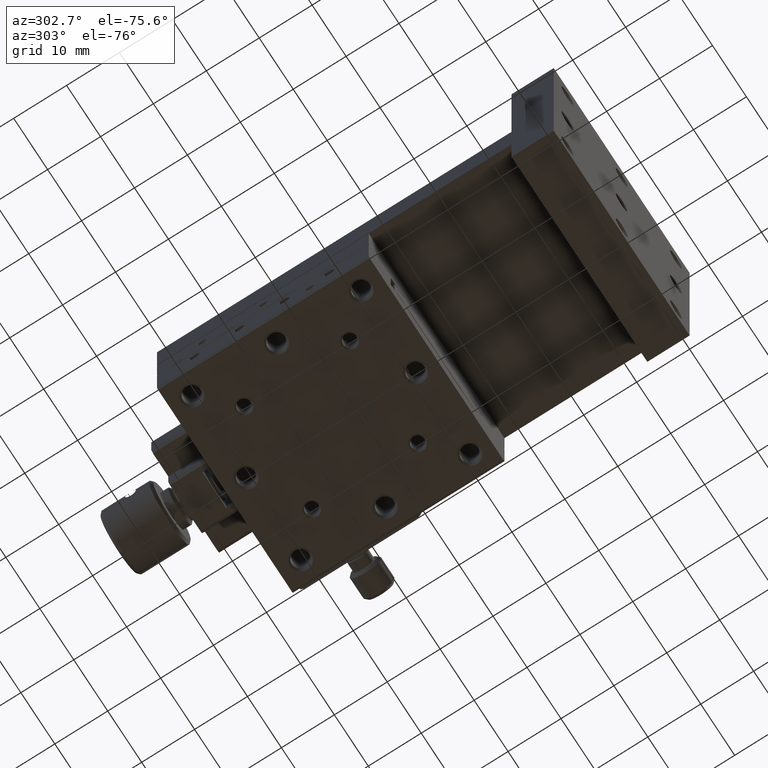
[diagram: clean part render]
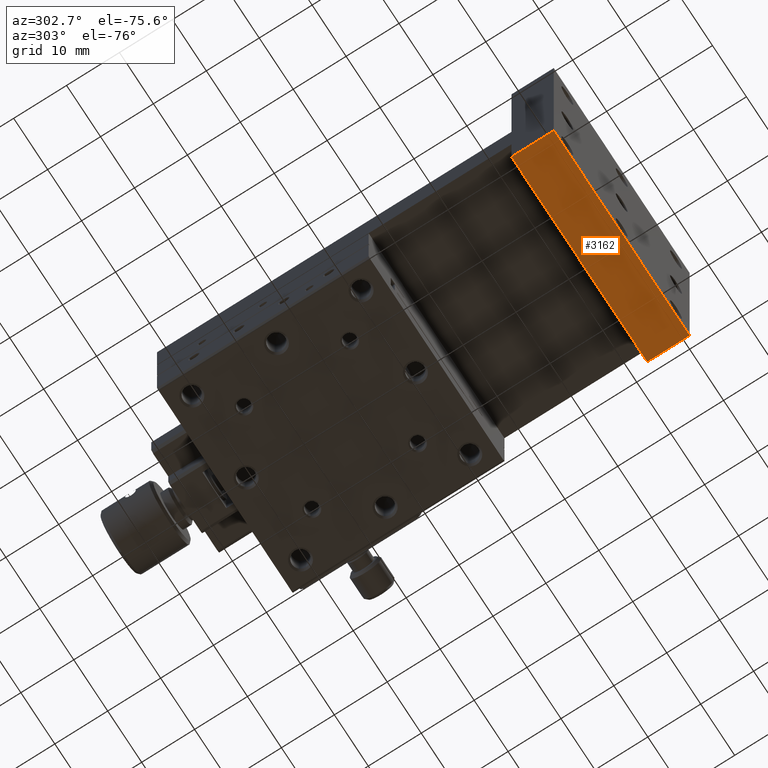
[diagram: same view with one face highlighted and labeled with its STEP entity id]
A machine part, auxiliary view. The second image highlights one B-rep face of the part: STEP entity #3162.
In plain terms, the highlighted planar face has unit normal (0, 0, 1).
Its self-contained STEP definition (entity closure, byte-faithful):
#750 = CARTESIAN_POINT ( 'NONE',  ( 20.00000000000000000, 0.000000000000000000, -8.000000000000000000 ) ) ;
#907 = DIRECTION ( 'NONE',  ( 1.000000000000000000, 0.000000000000000000, 0.000000000000000000 ) ) ;
#1152 = CARTESIAN_POINT ( 'NONE',  ( 20.00000000000000000, 0.000000000000000000, -8.000000000000000000 ) ) ;
#1285 = ORIENTED_EDGE ( 'NONE', *, *, #4520, .T. ) ;
#1496 = ORIENTED_EDGE ( 'NONE', *, *, #7107, .T. ) ;
#1725 = EDGE_CURVE ( 'NONE', #6153, #1931, #7009, .T. ) ;
#1931 = VERTEX_POINT ( 'NONE', #5090 ) ;
#2092 = VECTOR ( 'NONE', #7050, 1000.000000000000000 ) ;
#2117 = ORIENTED_EDGE ( 'NONE', *, *, #1725, .F. ) ;
#2126 = AXIS2_PLACEMENT_3D ( 'NONE', #4858, #4248, #5976 ) ;
#2263 = VECTOR ( 'NONE', #907, 1000.000000000000000 ) ;
#2382 = FACE_OUTER_BOUND ( 'NONE', #5602, .T. ) ;
#3026 = PLANE ( 'NONE',  #2126 ) ;
#3069 = LINE ( 'NONE', #6130, #7051 ) ;
#3162 = ADVANCED_FACE ( 'NONE', ( #2382 ), #3026, .F. ) ;
#3290 = CARTESIAN_POINT ( 'NONE',  ( -20.00000000000000000, 0.000000000000000000, -8.000000000000000000 ) ) ;
#3673 = LINE ( 'NONE', #750, #7451 ) ;
#4205 = DIRECTION ( 'NONE',  ( 1.000000000000000000, 0.000000000000000000, -0.000000000000000000 ) ) ;
#4248 = DIRECTION ( 'NONE',  ( 0.000000000000000000, 0.000000000000000000, 1.000000000000000000 ) ) ;
#4328 = DIRECTION ( 'NONE',  ( -0.000000000000000000, 1.000000000000000000, 0.000000000000000000 ) ) ;
#4467 = LINE ( 'NONE', #5011, #2263 ) ;
#4520 = EDGE_CURVE ( 'NONE', #7182, #6369, #3069, .T. ) ;
#4741 = CARTESIAN_POINT ( 'NONE',  ( 20.00000000000000000, 0.000000000000000000, -8.000000000000000000 ) ) ;
#4858 = CARTESIAN_POINT ( 'NONE',  ( 20.00000000000000000, 0.000000000000000000, -8.000000000000000000 ) ) ;
#5011 = CARTESIAN_POINT ( 'NONE',  ( 20.00000000000000000, 8.000000000000000000, -8.000000000000000000 ) ) ;
#5090 = CARTESIAN_POINT ( 'NONE',  ( 20.00000000000000000, 8.000000000000000000, -8.000000000000000000 ) ) ;
#5151 = CARTESIAN_POINT ( 'NONE',  ( -20.00000000000000000, 8.000000000000000000, -8.000000000000000000 ) ) ;
#5602 = EDGE_LOOP ( 'NONE', ( #1496, #2117, #6095, #1285 ) ) ;
#5976 = DIRECTION ( 'NONE',  ( 1.000000000000000000, 0.000000000000000000, -0.000000000000000000 ) ) ;
#6061 = EDGE_CURVE ( 'NONE', #7182, #6153, #3673, .T. ) ;
#6095 = ORIENTED_EDGE ( 'NONE', *, *, #6061, .F. ) ;
#6130 = CARTESIAN_POINT ( 'NONE',  ( -20.00000000000000000, 0.000000000000000000, -8.000000000000000000 ) ) ;
#6153 = VERTEX_POINT ( 'NONE', #4741 ) ;
#6369 = VERTEX_POINT ( 'NONE', #5151 ) ;
#7009 = LINE ( 'NONE', #1152, #2092 ) ;
#7050 = DIRECTION ( 'NONE',  ( -0.000000000000000000, 1.000000000000000000, 0.000000000000000000 ) ) ;
#7051 = VECTOR ( 'NONE', #4328, 1000.000000000000000 ) ;
#7107 = EDGE_CURVE ( 'NONE', #6369, #1931, #4467, .T. ) ;
#7182 = VERTEX_POINT ( 'NONE', #3290 ) ;
#7451 = VECTOR ( 'NONE', #4205, 1000.000000000000000 ) ;